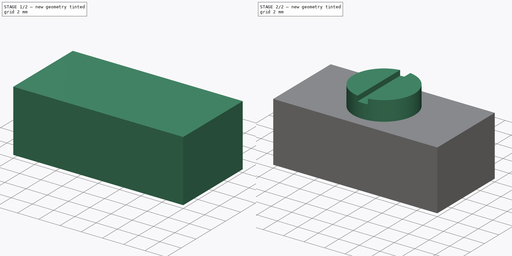
[diagram: build sequence overview — one tinted view per stage of 2, left to right]
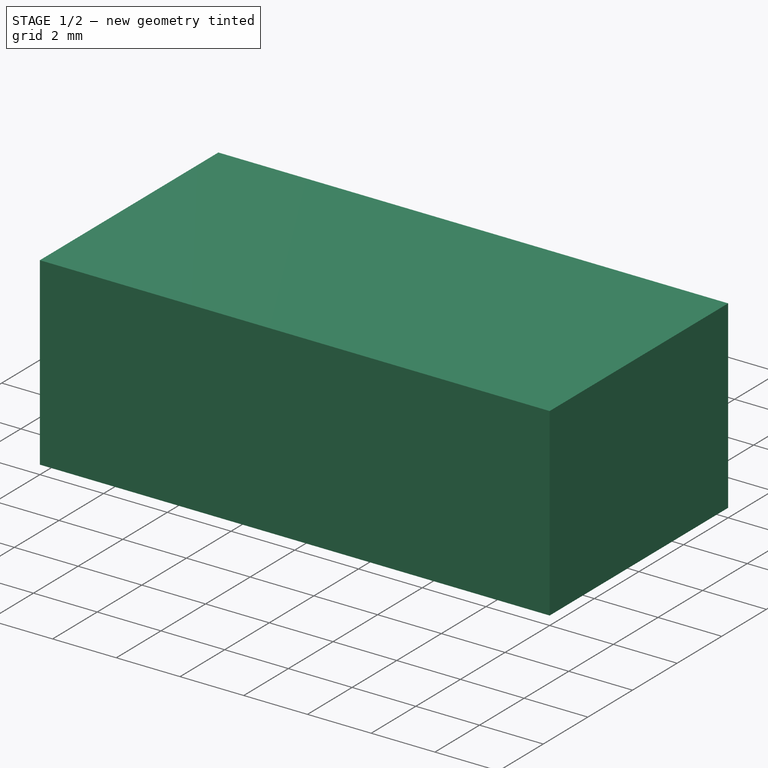
[diagram: stage 1 of 2 — iso view after this stage's code; geometry added in this stage tinted green]
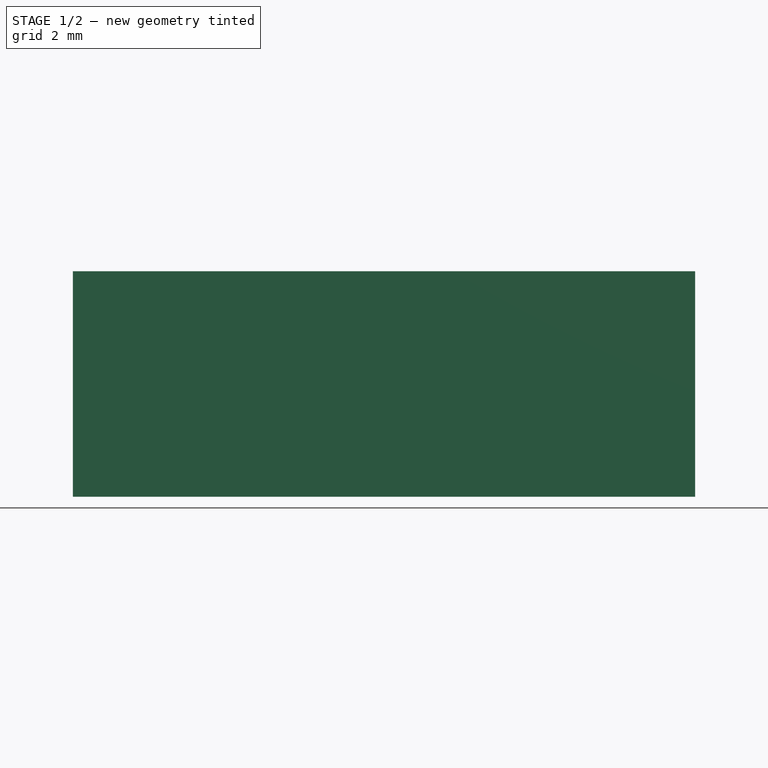
[diagram: stage 1 of 2 — front view after this stage's code; geometry added in this stage tinted green]
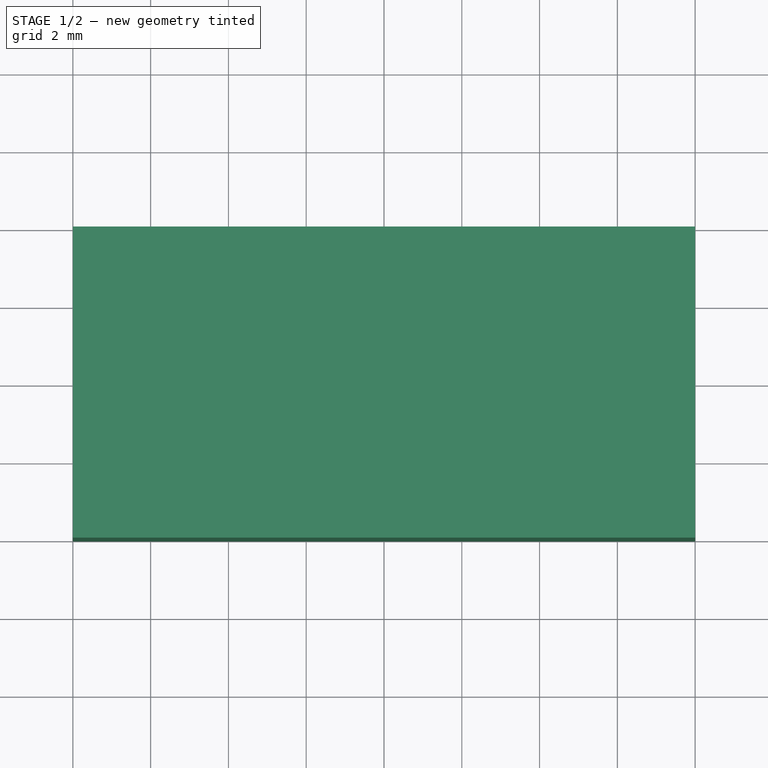
[diagram: stage 1 of 2 — top view after this stage's code; geometry added in this stage tinted green]
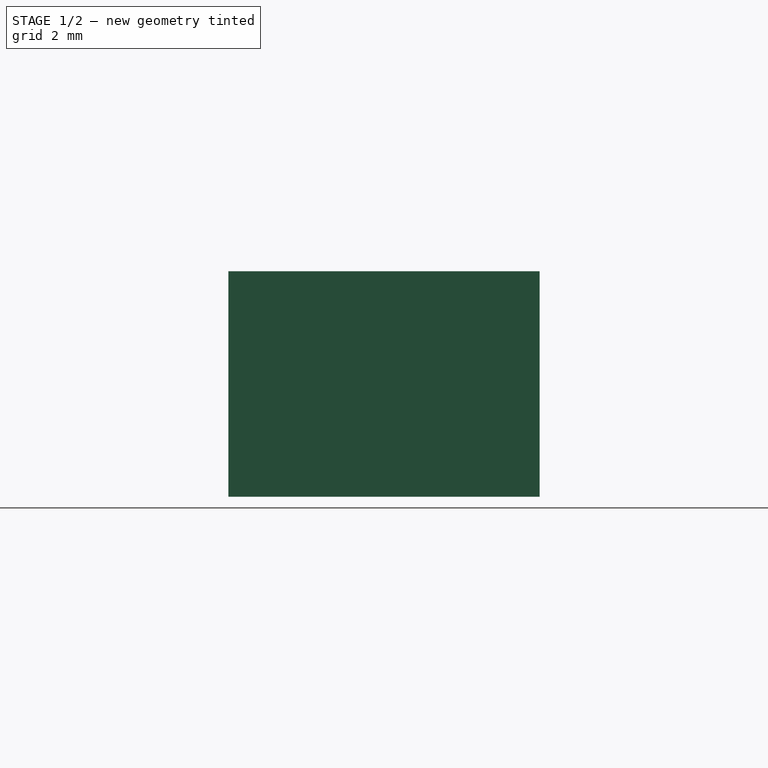
[diagram: stage 1 of 2 — right view after this stage's code; geometry added in this stage tinted green]
FCSTD DOCUMENT  (FreeCAD 1.0R39285 (Git))
Label: power_switch
License: All rights reserved
LicenseURL: https://en.wikipedia.org/wiki/All_rights_reserved
objects: Sketcher::SketchObject×4, PartDesign::Pad×3, PartDesign::Pocket×1, PartDesign::Body×1
note: 21 computed .brp shape members not serialized (recipe doc carries the construction recipe); baked Part::Feature solids carry a one-line shape summary decoded from their .brp

FEATURE [Sketcher::SketchObject] Sketch
  ArcFitTolerance = 1e-06
  AttachmentSupport = -> [XY_Plane]
  FullyConstrained = true
  MakeInternals = false
  MapMode = 5
  sketch-geometry (16):
    g0: LineSegment [constr] StartX=8 StartY=4 StartZ=0 EndX=-8 EndY=4 EndZ=0
    g1: LineSegment StartX=-8 StartY=4 StartZ=0 EndX=-8 EndY=-4 EndZ=0
    g2: LineSegment StartX=-8 StartY=-4 StartZ=0 EndX=8 EndY=-4 EndZ=0
    g3: LineSegment StartX=8 StartY=-4 StartZ=0 EndX=8 EndY=4 EndZ=0
    g4: GeomPoint [constr] X=0 Y=0 Z=0
    g5: LineSegment [constr] StartX=7 StartY=2.4 StartZ=0 EndX=-7 EndY=2.4 EndZ=0
    g6: LineSegment StartX=-7 StartY=2.4 StartZ=0 EndX=-7 EndY=-2.6 EndZ=0
    g7: LineSegment StartX=-7 StartY=-2.6 StartZ=0 EndX=7 EndY=-2.6 EndZ=0
    g8: LineSegment StartX=7 StartY=-2.6 StartZ=0 EndX=7 EndY=2.4 EndZ=0
    g9: GeomPoint [constr] X=0 Y=-0.1 Z=0
    g10: LineSegment StartX=-8 StartY=4 StartZ=0 EndX=-0.7 EndY=4 EndZ=0
    g11: LineSegment StartX=8 StartY=4 StartZ=0 EndX=0.7 EndY=4 EndZ=0
    g12: LineSegment StartX=-7 StartY=2.4 StartZ=0 EndX=-0.7 EndY=2.4 EndZ=0
    g13: LineSegment StartX=7 StartY=2.4 StartZ=0 EndX=0.7 EndY=2.4 EndZ=0
    g14: LineSegment StartX=-0.7 StartY=2.4 StartZ=0 EndX=-0.7 EndY=4 EndZ=0
    g15: LineSegment StartX=0.7 StartY=4 StartZ=0 EndX=0.7 EndY=2.4 EndZ=0
  constraints (41):
    c: Coincident(g0,g1)
    c: Coincident(g1,g2)
    c: Coincident(g2,g3)
    c: Coincident(g3,g0)
    c: Horizontal(g0)
    c: Horizontal(g2)
    c: Vertical(g1)
    c: Vertical(g3)
    c: Symmetric(g2,g0,g4)
    c: Coincident(g4,g-1)
    c: Coincident(g5,g6)
    c: Coincident(g6,g7)
    c: Coincident(g7,g8)
    c: Coincident(g8,g5)
    c: Horizontal(g5)
    c: Horizontal(g7)
    c: Vertical(g6)
    c: Vertical(g8)
    c: Symmetric(g7,g5,g9)
    c: PointOnObject(g9,g-2)
    c: Coincident(g10,g0)
    c: PointOnObject(g10,g0)
    c: Coincident(g11,g0)
    c: PointOnObject(g11,g0)
    c: Coincident(g12,g5)
    c: PointOnObject(g12,g5)
    c: Coincident(g13,g5)
    c: PointOnObject(g13,g5)
    c: Coincident(g14,g12)
    c: Coincident(g14,g10)
    c: Coincident(g15,g11)
    c: Coincident(g15,g13)
    c: Vertical(g14)
    c: Vertical(g15)
    c: Distance(g15,g14) = 1.4
    c: Distance(g12,g10) = 1.6
    c: DistanceX(g7,g7) = 14
    c: DistanceY(g8,g8) = 5
    c: Distance(g3,g3) = 8
    c: Equal(g12,g13)
    c: DistanceX(g2,g2) = 16
FEATURE [PartDesign::Pad] Pad
  Direction = (0,0,1)
  Length = 2.5
  Length2 = 10
  Profile = -> Sketch
  ReferenceAxis = -> Sketch [N_Axis]
  Refine = true
  Reversed = true
  Suppressed = false
  Type = 0
FEATURE [Sketcher::SketchObject] Sketch001
  ArcFitTolerance = 1e-06
  AttachmentSupport = -> [XY_Plane]
  FullyConstrained = true
  MakeInternals = false
  MapMode = 5
  sketch-geometry (5):
    g0: LineSegment StartX=8 StartY=4 StartZ=0 EndX=-8 EndY=4 EndZ=0
    g1: LineSegment StartX=-8 StartY=4 StartZ=0 EndX=-8 EndY=-4 EndZ=0
    g2: LineSegment StartX=-8 StartY=-4 StartZ=0 EndX=8 EndY=-4 EndZ=0
    g3: LineSegment StartX=8 StartY=-4 StartZ=0 EndX=8 EndY=4 EndZ=0
    g4: GeomPoint [constr] X=0 Y=0 Z=0
  constraints (12):
    c: Coincident(g0,g1)
    c: Coincident(g1,g2)
    c: Coincident(g2,g3)
    c: Coincident(g3,g0)
    c: Horizontal(g0)
    c: Horizontal(g2)
    c: Vertical(g1)
    c: Vertical(g3)
    c: Symmetric(g2,g0,g4)
    c: Coincident(g4,g-1)
    c: DistanceY(g1,g1) = 8
    c: DistanceX(g0,g0) = 16
FEATURE [PartDesign::Pad] Pad001
  BaseFeature = -> Pad
  Direction = (0,0,1)
  Length = 3.3
  Length2 = 10
  Profile = -> Sketch001
  ReferenceAxis = -> Sketch001 [N_Axis]
  Refine = true
  Suppressed = false
  Type = 0
  expr: Length = 6 - 2.5 - 0.2
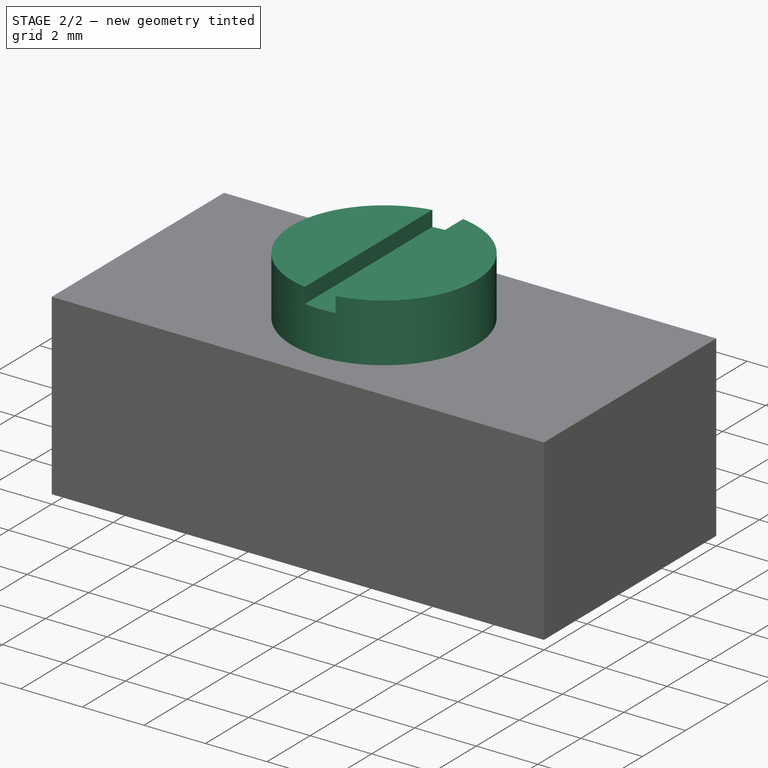
[diagram: stage 2 of 2 — iso view after this stage's code; geometry added in this stage tinted green]
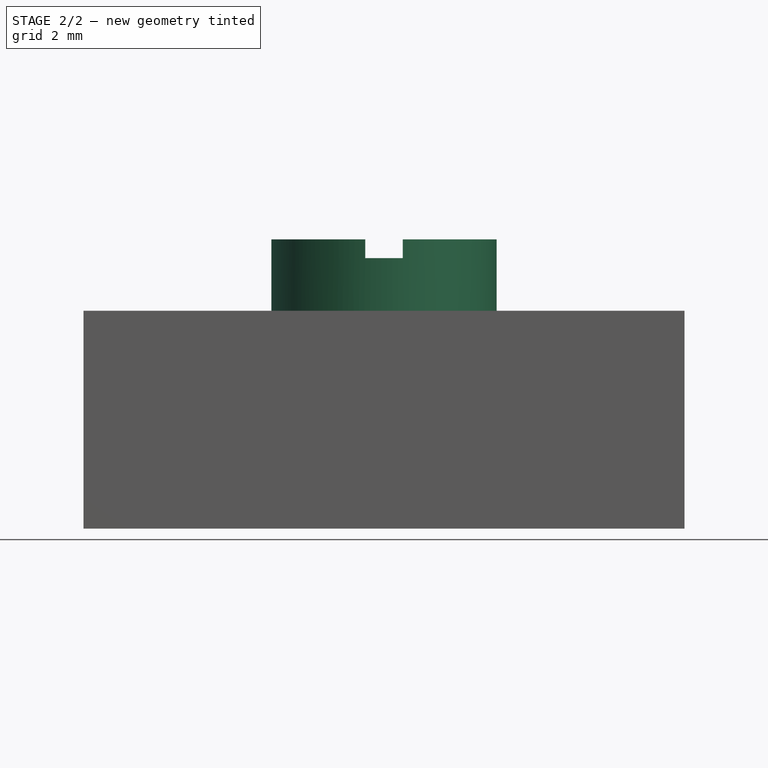
[diagram: stage 2 of 2 — front view after this stage's code; geometry added in this stage tinted green]
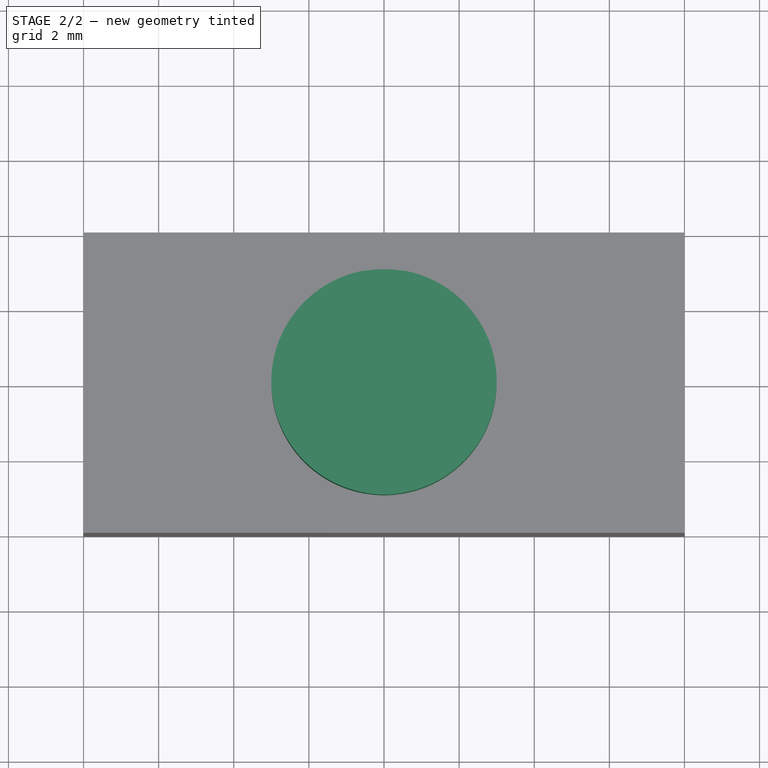
[diagram: stage 2 of 2 — top view after this stage's code; geometry added in this stage tinted green]
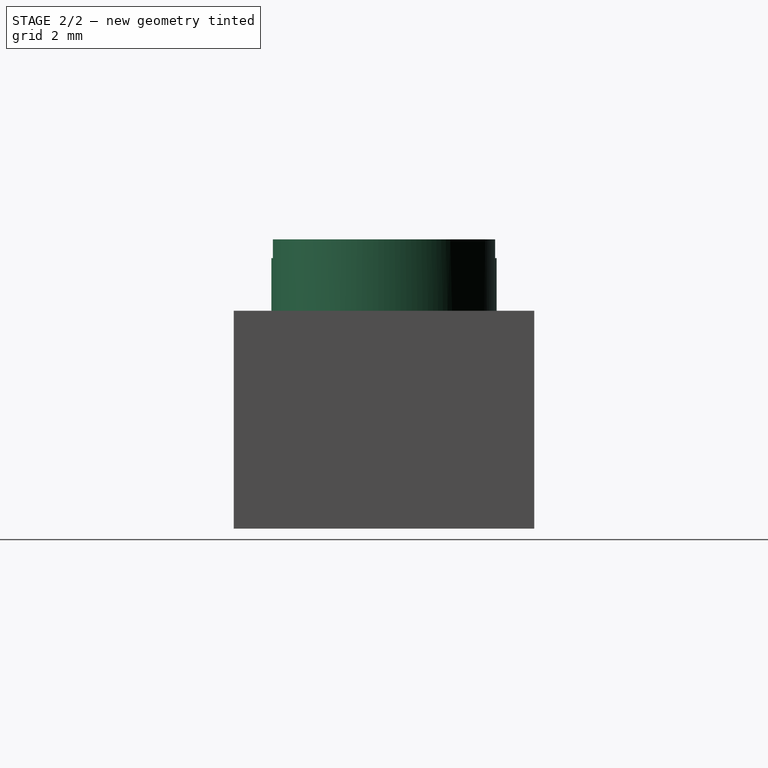
[diagram: stage 2 of 2 — right view after this stage's code; geometry added in this stage tinted green]
FEATURE [Sketcher::SketchObject] Sketch002
  ArcFitTolerance = 1e-06
  AttachmentSupport = -> [XY_Plane]
  FullyConstrained = true
  MakeInternals = false
  MapMode = 5
  sketch-geometry (1):
    g0: Circle CenterX=0 CenterY=0 CenterZ=0 NormalX=0 NormalY=0 NormalZ=1 AngleXU=0 Radius=3
  constraints (2):
    c: Coincident(g0,g-1)
    c: Diameter(g0) = 6
FEATURE [PartDesign::Pad] Pad002
  BaseFeature = -> Pad001
  Direction = (0,0,1)
  Length = 5.2
  Length2 = 10
  Profile = -> Sketch002
  ReferenceAxis = -> Sketch002 [N_Axis]
  Refine = true
  Suppressed = false
  Type = 0
FEATURE [Sketcher::SketchObject] Sketch003
  ArcFitTolerance = 1e-06
  AttachmentSupport = -> [Pad002]
  FullyConstrained = true
  MakeInternals = false
  MapMode = 5
  Placement = pos=(0,0,5.2) rot=(0,0,1;0rad)
  sketch-geometry (5):
    g0: LineSegment StartX=0.5 StartY=4 StartZ=0 EndX=-0.5 EndY=4 EndZ=0
    g1: LineSegment StartX=-0.5 StartY=4 StartZ=0 EndX=-0.5 EndY=-4 EndZ=0
    g2: LineSegment StartX=-0.5 StartY=-4 StartZ=0 EndX=0.5 EndY=-4 EndZ=0
    g3: LineSegment StartX=0.5 StartY=-4 StartZ=0 EndX=0.5 EndY=4 EndZ=0
    g4: GeomPoint [constr] X=0 Y=0 Z=0
  constraints (12):
    c: Coincident(g0,g1)
    c: Coincident(g1,g2)
    c: Coincident(g2,g3)
    c: Coincident(g3,g0)
    c: Horizontal(g0)
    c: Horizontal(g2)
    c: Vertical(g1)
    c: Vertical(g3)
    c: Symmetric(g2,g0,g4)
    c: Coincident(g4,g-1)
    c: Distance(g0,g0) = 1
    c: DistanceY(g3,g3) = 8
FEATURE [PartDesign::Pocket] Pocket
  BaseFeature = -> Pad002
  Direction = (0,0,-1)
  Length = 0.5
  Length2 = 5
  Profile = -> Sketch003
  ReferenceAxis = -> Sketch003 [N_Axis]
  Refine = true
  Suppressed = false
  Type = 0
FEATURE [PartDesign::Body] Body
  AllowCompound = false
  Group = -> [Sketch,Pad,Sketch001,Pad001,Sketch002,Pad002,Sketch003,Pocket]
  Origin = -> Origin
  Tip = -> Pocket
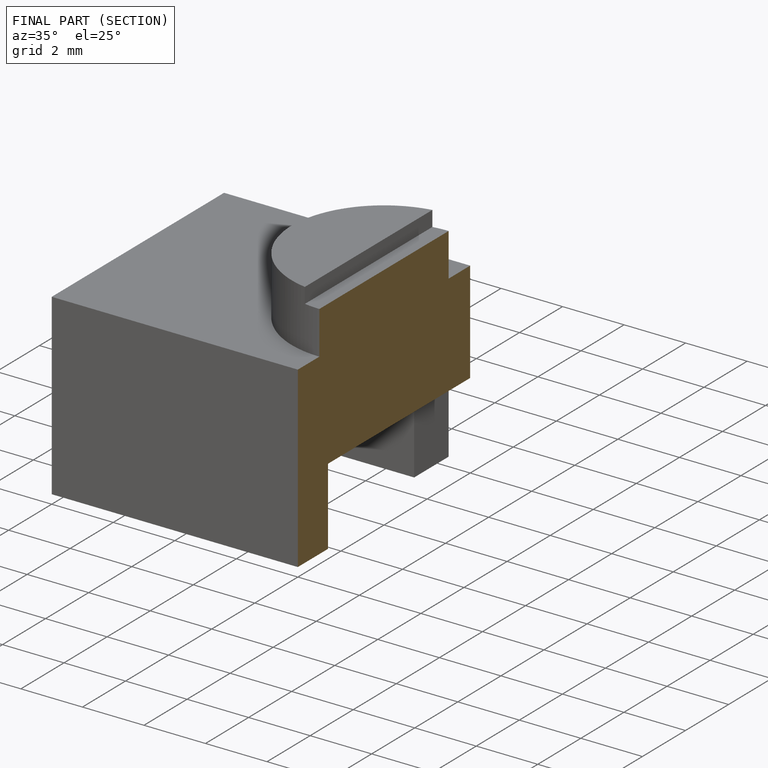
[diagram: finished part — half-section view (interior)]
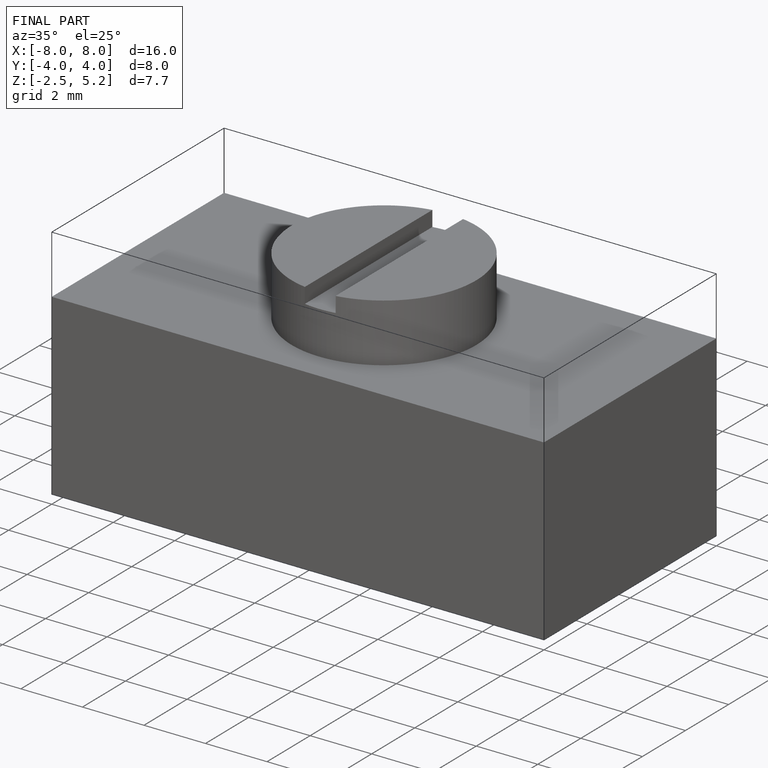
[diagram: finished part — iso view with bounding-box wireframe]
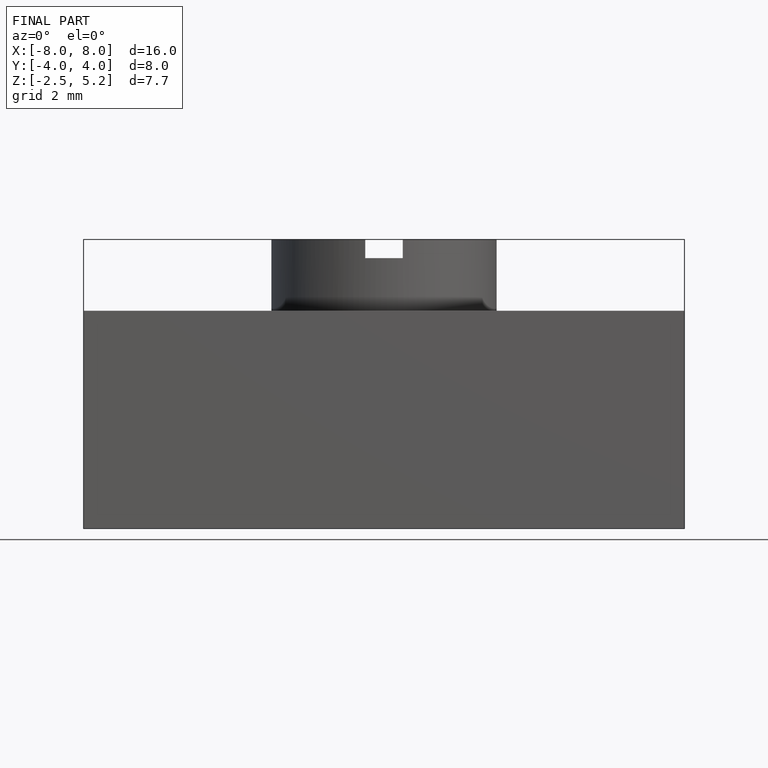
[diagram: finished part — front view with bounding-box wireframe]
